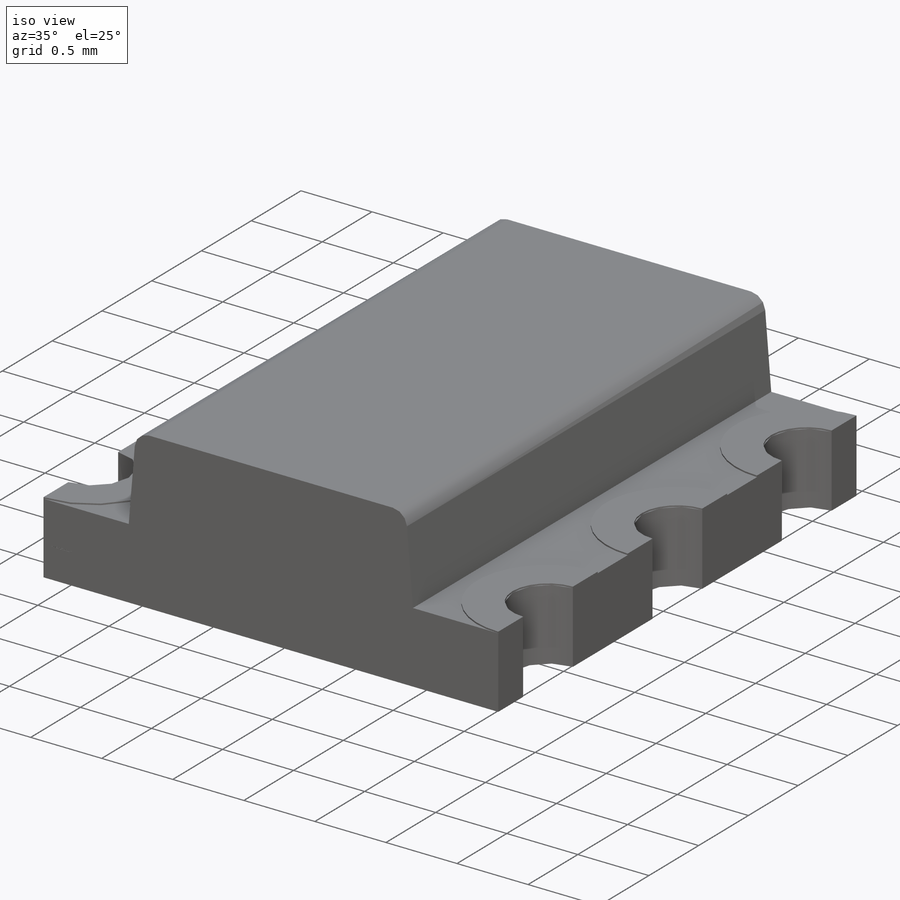
[diagram: iso view]
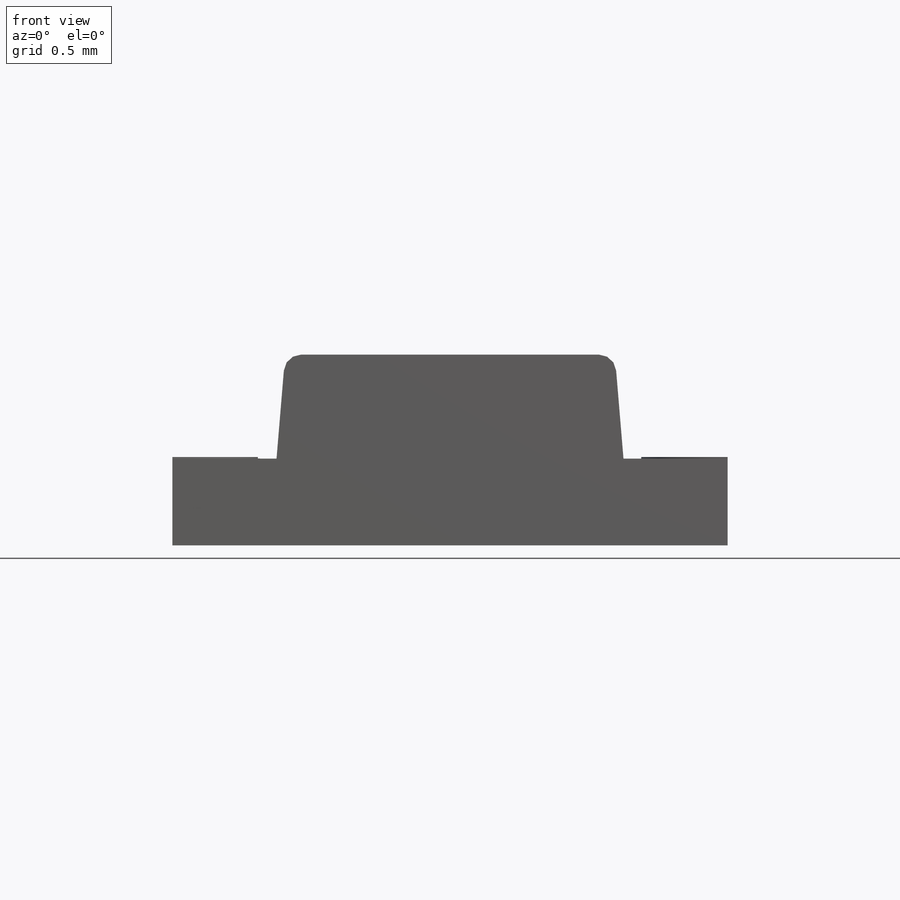
[diagram: front view]
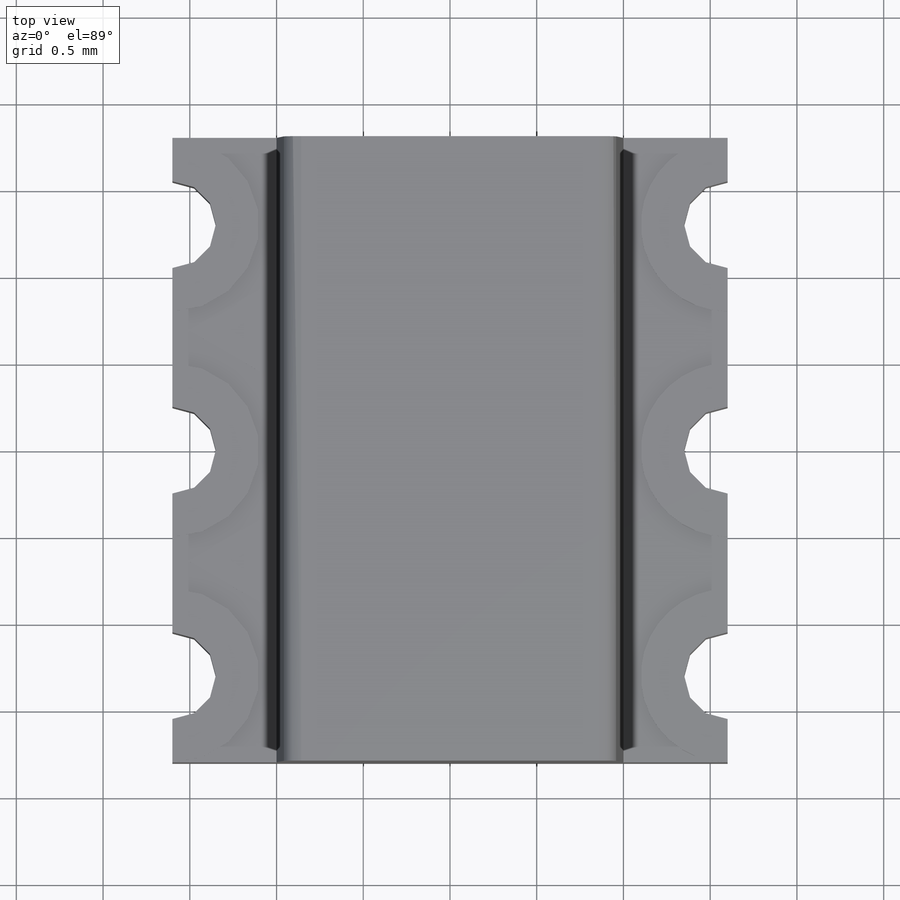
[diagram: top view]
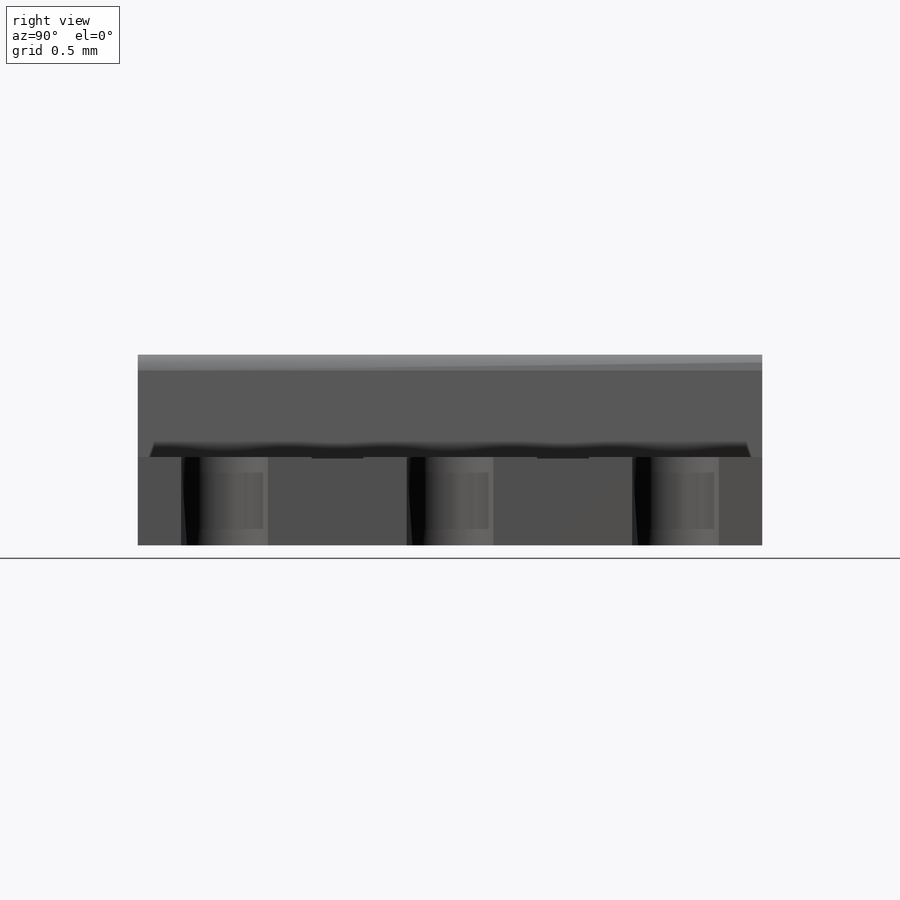
[diagram: right view]
SOLIDWORKS PART (.sldprt)
format: sldprt  version: not decoded by parser v0  size: 685,568 bytes
history: native  units: mm
features: sketch x7, extrude x5, cut_extrude x2, material x1, fillet x1 (+11 scaffold rows collapsed)
feature tree (27):
  scaffold x11  (default folders/planes/origin — collapsed)
  material  "Material <not specified>"
  sketch  "Sketch1"  dims[D1=0.5mm D2=3.2mm D3=2.0mm D4=1.9mm D5=1.1mm D6=0.3mm D7=0.02mm D8=0.02mm D9=0.2mm D10=0.02mm]
  extrude  "Extrude1"  Depth=3.6mm
  extrude  "Extrude2"  [1 undecoded]
  sketch  "Sketch1<3>"  dims[D1=3.6mm]
  fillet  "Fillet1"  Radius=0.1mm
  sketch  "Sketch2"  dims[c1.D1=0.2mm c1.D3=0.4mm c2.D1=0.2mm c2.D3=0.5mm c2.D2=2.6mm c2.D4=0.8mm c2.D5=1.0mm c3.D1=0.8mm c3.D2=2.6mm]
  sketch  "Sketch3"  dims[D1=0.25mm D2=0.03mm]
  cut_extrude  "Cut-Extrude1"  Depth=0.0025mm
  sketch  "Sketch4"
  cut_extrude  "Cut-Extrude2"  [1 undecoded]
  sketch  "Sketch2<3>"
  extrude  "Extrude5"  Depth=0.01mm
  extrude  "Extrude6"  Depth=0.01mm
  extrude  "Extrude7"  [1 undecoded]
  sketch  "Sketch4<3>"  dims[D1=0.001mm]
decode coverage: 10 of 15 modeling features carry decoded parameters
note: 3 parameter values undecoded
summary: no parameter record found for 3 features
note: suppression state not decoded; provenance and decode notes live in map.json
